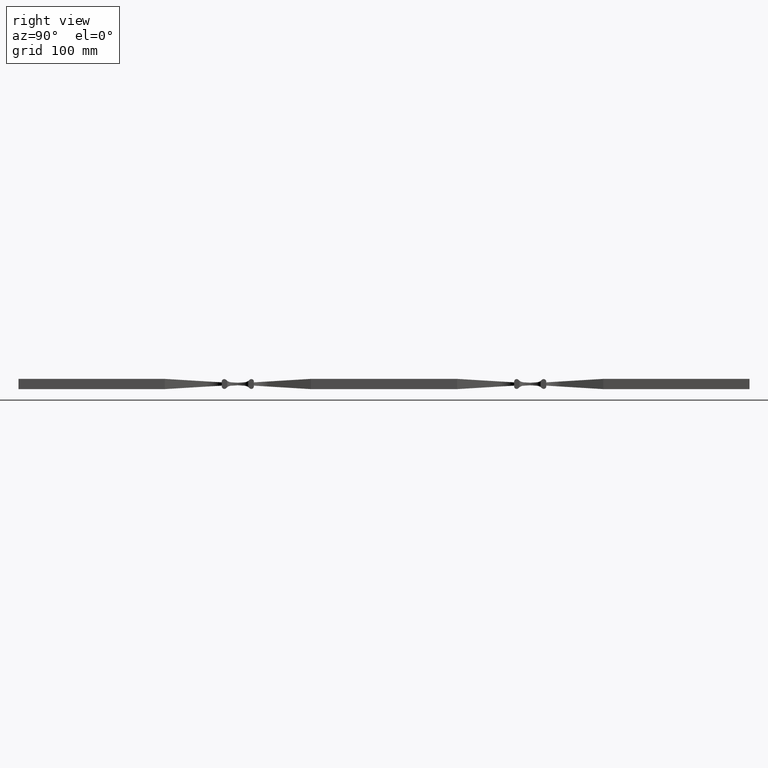
[diagram: clean part render]
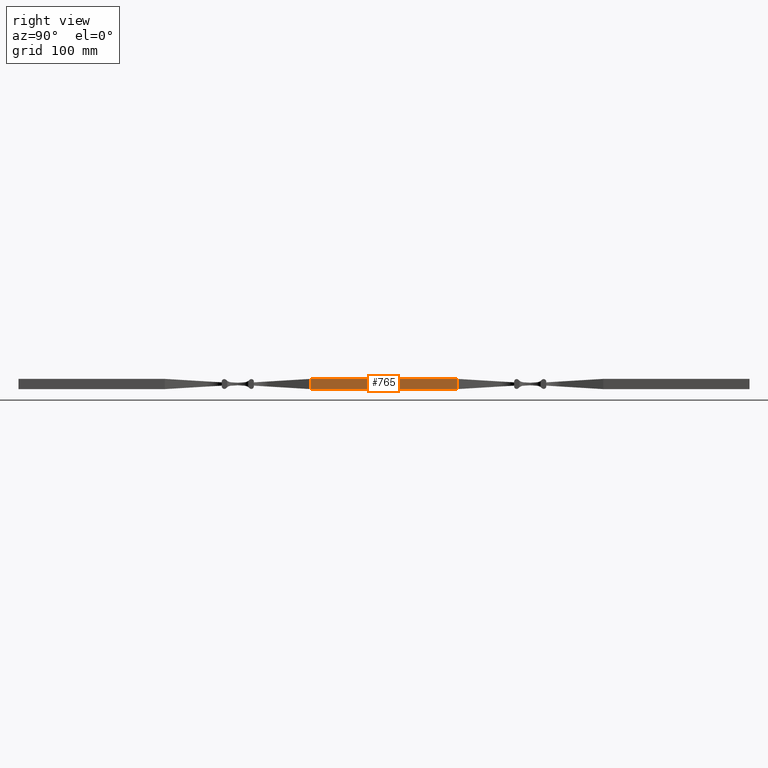
[diagram: same view with one face highlighted and labeled with its STEP entity id]
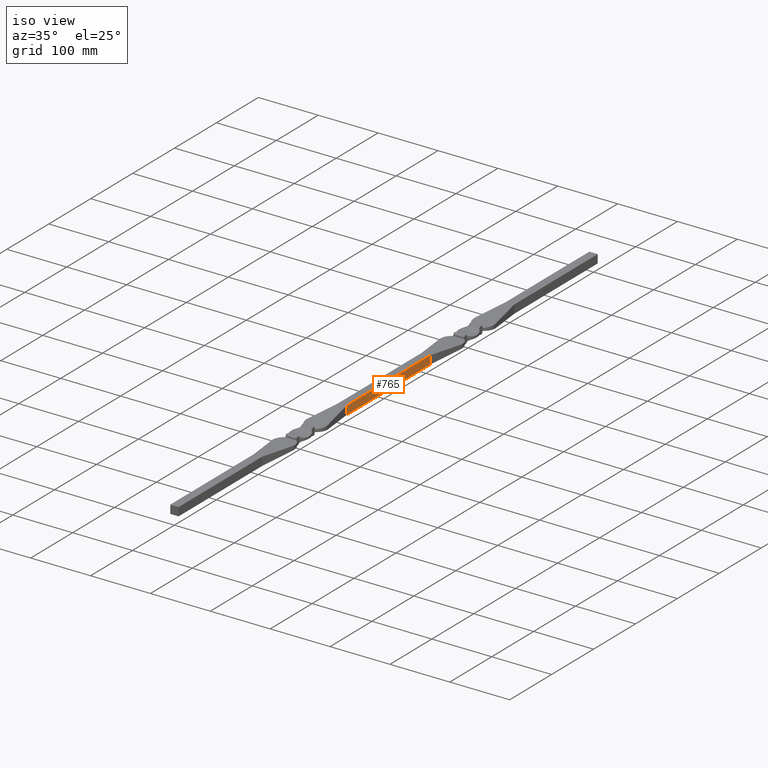
[diagram: same view with one face highlighted and labeled with its STEP entity id]
A machine part, right view. The second image highlights one B-rep face of the part: STEP entity #765.
A second angle (iso view) of the same face is appended — the face is thin or edge-on in the first view.
In plain terms, the highlighted planar face has unit normal (-1, 0, 0).
Its self-contained STEP definition (entity closure, byte-faithful):
#228 = DIRECTION ( 'NONE',  ( 0.000000000000000000, 0.000000000000000000, -1.000000000000000000 ) ) ;
#368 = VERTEX_POINT ( 'NONE', #2850 ) ;
#765 = ADVANCED_FACE ( 'NONE', ( #7538 ), #7399, .F. ) ;
#926 = ORIENTED_EDGE ( 'NONE', *, *, #6815, .F. ) ;
#943 = DIRECTION ( 'NONE',  ( -1.000000000000000000, 4.625929269271485322E-15, 0.000000000000000000 ) ) ;
#1066 = VECTOR ( 'NONE', #228, 1000.000000000000000 ) ;
#1409 = CARTESIAN_POINT ( 'NONE',  ( 7.000000000000000888, -100.0000000000000000, 7.000000000000000000 ) ) ;
#2505 = VERTEX_POINT ( 'NONE', #5038 ) ;
#2771 = EDGE_CURVE ( 'NONE', #368, #12831, #13048, .T. ) ;
#2850 = CARTESIAN_POINT ( 'NONE',  ( 7.000000000000000888, -300.0000000000000000, 7.000000000000000000 ) ) ;
#3139 = CARTESIAN_POINT ( 'NONE',  ( 6.999999999998521183, -419.7989898732233769, -7.000000000000000000 ) ) ;
#3245 = VECTOR ( 'NONE', #10994, 1000.000000000000000 ) ;
#3404 = LINE ( 'NONE', #1409, #1066 ) ;
#3523 = VERTEX_POINT ( 'NONE', #10804 ) ;
#4047 = ORIENTED_EDGE ( 'NONE', *, *, #2771, .F. ) ;
#4194 = DIRECTION ( 'NONE',  ( -4.625929269271485322E-15, -1.000000000000000000, 0.000000000000000000 ) ) ;
#5038 = CARTESIAN_POINT ( 'NONE',  ( 7.000000000000000888, -300.0000000000000000, -7.000000000000000000 ) ) ;
#5173 = VECTOR ( 'NONE', #11213, 1000.000000000000000 ) ;
#5786 = DIRECTION ( 'NONE',  ( 4.625929269271485322E-15, 1.000000000000000000, -0.000000000000000000 ) ) ;
#6777 = EDGE_CURVE ( 'NONE', #368, #2505, #8105, .T. ) ;
#6815 = EDGE_CURVE ( 'NONE', #12831, #3523, #3404, .T. ) ;
#6911 = EDGE_CURVE ( 'NONE', #2505, #3523, #6939, .T. ) ;
#6939 = LINE ( 'NONE', #8044, #9297 ) ;
#7033 = CARTESIAN_POINT ( 'NONE',  ( 7.000000000000000888, -100.0000000000000284, 7.000000000000000000 ) ) ;
#7399 = PLANE ( 'NONE',  #8993 ) ;
#7538 = FACE_OUTER_BOUND ( 'NONE', #11767, .T. ) ;
#8044 = CARTESIAN_POINT ( 'NONE',  ( 6.999999999998521183, -419.7989898732233769, -7.000000000000000000 ) ) ;
#8105 = LINE ( 'NONE', #8797, #3245 ) ;
#8797 = CARTESIAN_POINT ( 'NONE',  ( 7.000000000000000888, -300.0000000000000568, 7.000000000000000000 ) ) ;
#8993 = AXIS2_PLACEMENT_3D ( 'NONE', #3139, #943, #4194 ) ;
#9297 = VECTOR ( 'NONE', #5786, 1000.000000000000000 ) ;
#10139 = CARTESIAN_POINT ( 'NONE',  ( 6.999999999998521183, -419.7989898732233769, 7.000000000000000000 ) ) ;
#10803 = ORIENTED_EDGE ( 'NONE', *, *, #6777, .T. ) ;
#10804 = CARTESIAN_POINT ( 'NONE',  ( 7.000000000000000888, -100.0000000000000284, -7.000000000000000000 ) ) ;
#10994 = DIRECTION ( 'NONE',  ( 0.000000000000000000, 0.000000000000000000, -1.000000000000000000 ) ) ;
#11213 = DIRECTION ( 'NONE',  ( 4.625929269271485322E-15, 1.000000000000000000, -0.000000000000000000 ) ) ;
#11637 = ORIENTED_EDGE ( 'NONE', *, *, #6911, .T. ) ;
#11767 = EDGE_LOOP ( 'NONE', ( #4047, #10803, #11637, #926 ) ) ;
#12831 = VERTEX_POINT ( 'NONE', #7033 ) ;
#13048 = LINE ( 'NONE', #10139, #5173 ) ;